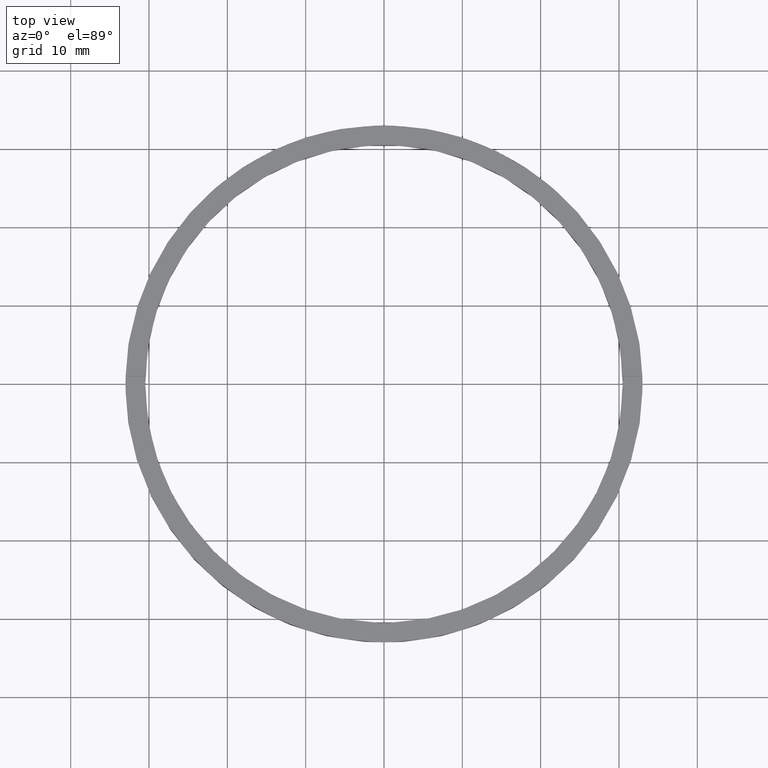
[diagram: clean part render]
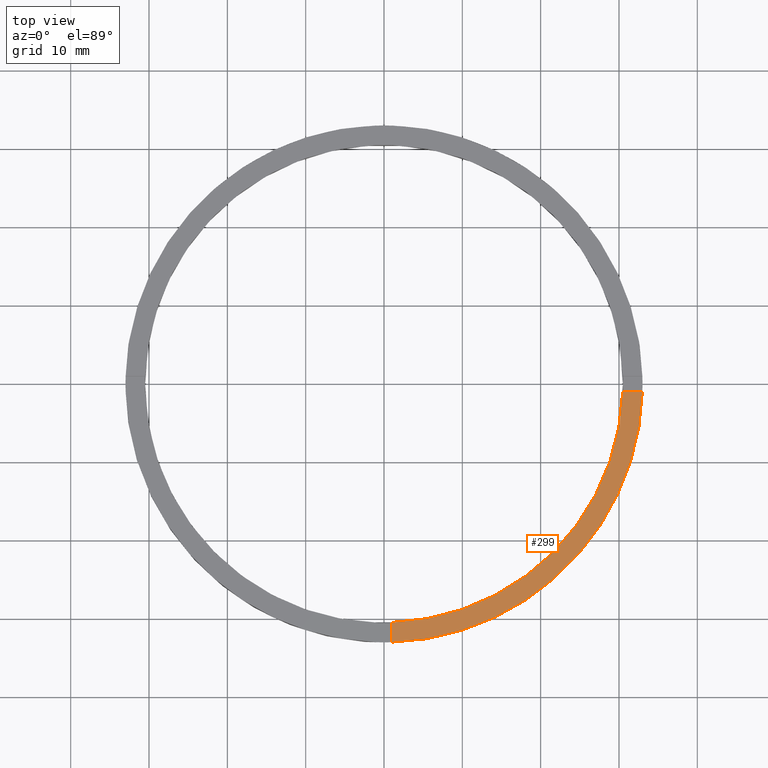
[diagram: same view with one face highlighted and labeled with its STEP entity id]
A machine part, top view. The second image highlights one B-rep face of the part: STEP entity #299.
In plain terms, the highlighted planar face has unit normal (0, 0, 1).
Its self-contained STEP definition (entity closure, byte-faithful):
#3 = CARTESIAN_POINT ( 'NONE',  ( 0.9999999999998377964, -23.00000000000018119, 3.000000000000000000 ) ) ;
#4 = DIRECTION ( 'NONE',  ( 0.000000000000000000, 0.000000000000000000, 1.000000000000000000 ) ) ;
#10 = CARTESIAN_POINT ( 'NONE',  ( 0.9999999999998386846, -30.48360214935236456, 3.000000000000000000 ) ) ;
#35 = ORIENTED_EDGE ( 'NONE', *, *, #169, .F. ) ;
#41 = VECTOR ( 'NONE', #353, 1000.000000000000000 ) ;
#48 = VERTEX_POINT ( 'NONE', #455 ) ;
#56 = AXIS2_PLACEMENT_3D ( 'NONE', #214, #513, #416 ) ;
#64 = PLANE ( 'NONE',  #650 ) ;
#95 = EDGE_LOOP ( 'NONE', ( #35, #341, #627, #400 ) ) ;
#97 = EDGE_CURVE ( 'NONE', #237, #755, #143, .T. ) ;
#110 = EDGE_CURVE ( 'NONE', #564, #48, #409, .T. ) ;
#143 = CIRCLE ( 'NONE', #441, 33.00000000000000000 ) ;
#148 = DIRECTION ( 'NONE',  ( 1.000000000000000000, 0.000000000000000000, -0.000000000000000000 ) ) ;
#151 = LINE ( 'NONE', #771, #421 ) ;
#169 = EDGE_CURVE ( 'NONE', #48, #755, #151, .T. ) ;
#209 = DIRECTION ( 'NONE',  ( 1.000000000000000000, 0.000000000000000000, 0.000000000000000000 ) ) ;
#214 = CARTESIAN_POINT ( 'NONE',  ( 0.000000000000000000, 0.000000000000000000, 3.000000000000000000 ) ) ;
#237 = VERTEX_POINT ( 'NONE', #769 ) ;
#285 = CARTESIAN_POINT ( 'NONE',  ( 0.000000000000000000, 0.000000000000000000, 3.000000000000000000 ) ) ;
#299 = ADVANCED_FACE ( 'NONE', ( #588 ), #64, .T. ) ;
#304 = DIRECTION ( 'NONE',  ( 0.000000000000000000, 0.000000000000000000, 1.000000000000000000 ) ) ;
#341 = ORIENTED_EDGE ( 'NONE', *, *, #110, .F. ) ;
#353 = DIRECTION ( 'NONE',  ( -1.301042606982605074E-16, 1.000000000000000000, -0.000000000000000000 ) ) ;
#400 = ORIENTED_EDGE ( 'NONE', *, *, #97, .T. ) ;
#409 = CIRCLE ( 'NONE', #56, 30.50000000000000000 ) ;
#416 = DIRECTION ( 'NONE',  ( 1.000000000000000000, 0.000000000000000000, 0.000000000000000000 ) ) ;
#421 = VECTOR ( 'NONE', #732, 1000.000000000000000 ) ;
#441 = AXIS2_PLACEMENT_3D ( 'NONE', #745, #4, #209 ) ;
#455 = CARTESIAN_POINT ( 'NONE',  ( 30.48360214935235390, -1.000000000000158540, 3.000000000000000000 ) ) ;
#513 = DIRECTION ( 'NONE',  ( 0.000000000000000000, 0.000000000000000000, 1.000000000000000000 ) ) ;
#564 = VERTEX_POINT ( 'NONE', #10 ) ;
#566 = LINE ( 'NONE', #3, #41 ) ;
#588 = FACE_OUTER_BOUND ( 'NONE', #95, .T. ) ;
#627 = ORIENTED_EDGE ( 'NONE', *, *, #640, .F. ) ;
#640 = EDGE_CURVE ( 'NONE', #237, #564, #566, .T. ) ;
#650 = AXIS2_PLACEMENT_3D ( 'NONE', #285, #304, #148 ) ;
#732 = DIRECTION ( 'NONE',  ( 1.000000000000000000, 6.505213034913022906E-17, 0.000000000000000000 ) ) ;
#733 = CARTESIAN_POINT ( 'NONE',  ( 32.98484500494128469, -1.000000000000158318, 3.000000000000000000 ) ) ;
#745 = CARTESIAN_POINT ( 'NONE',  ( 0.000000000000000000, 0.000000000000000000, 3.000000000000000000 ) ) ;
#755 = VERTEX_POINT ( 'NONE', #733 ) ;
#769 = CARTESIAN_POINT ( 'NONE',  ( 0.9999999999998391287, -32.98484500494129179, 3.000000000000000000 ) ) ;
#771 = CARTESIAN_POINT ( 'NONE',  ( 22.99999999999999645, -1.000000000000158984, 3.000000000000000000 ) ) ;